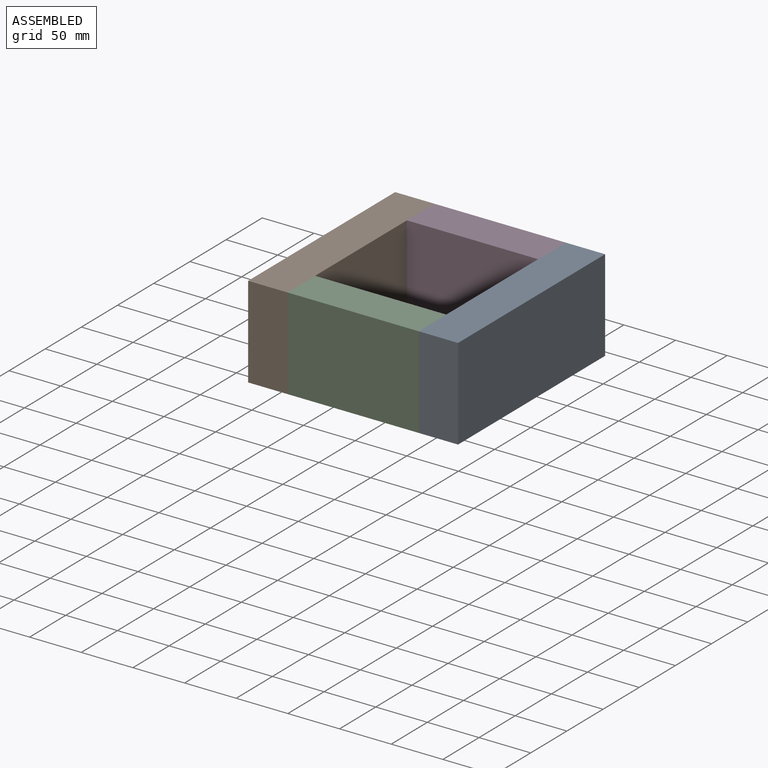
[diagram: assembled view]
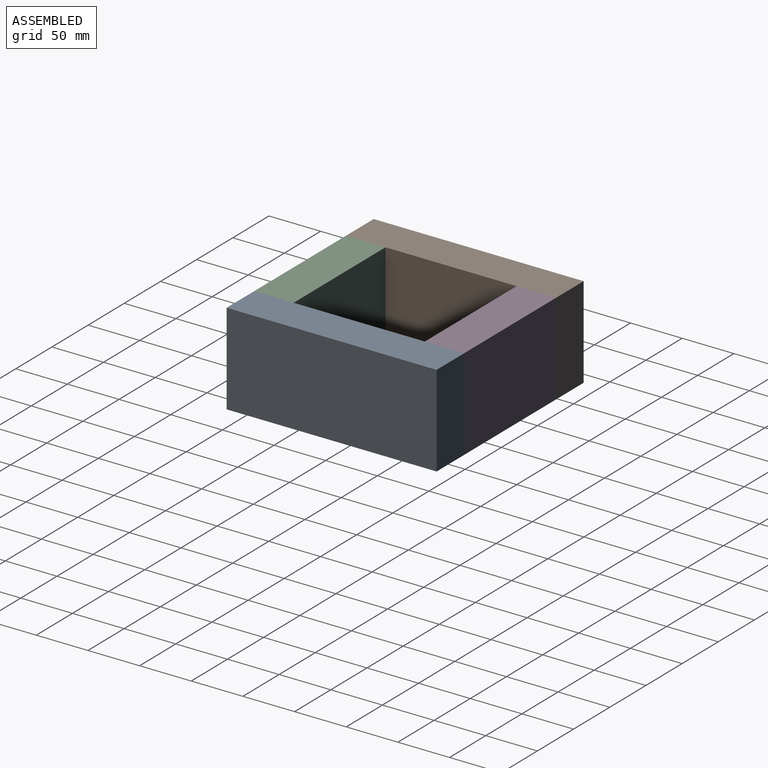
[diagram: assembled view, second angle]
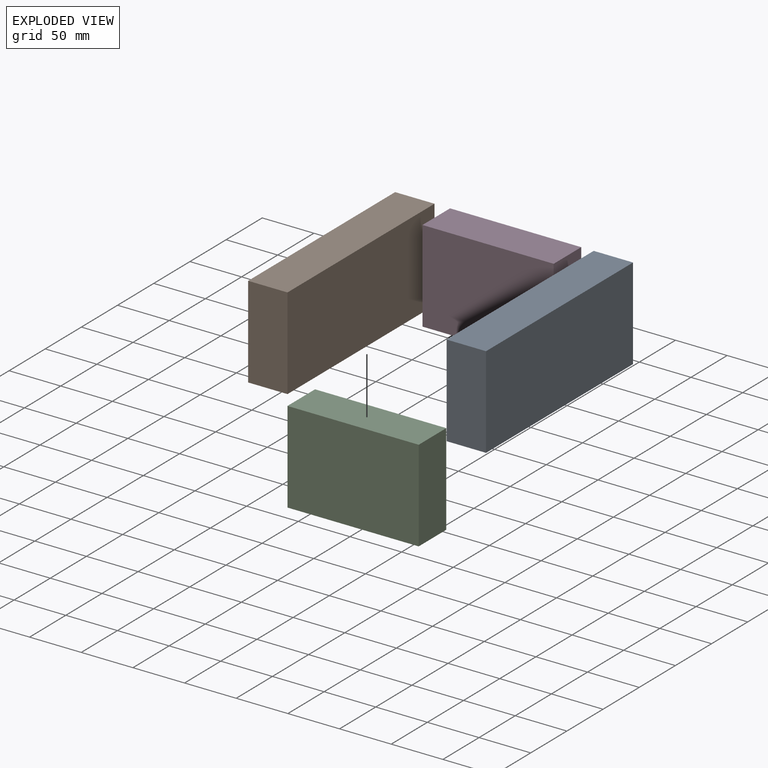
[diagram: exploded view]
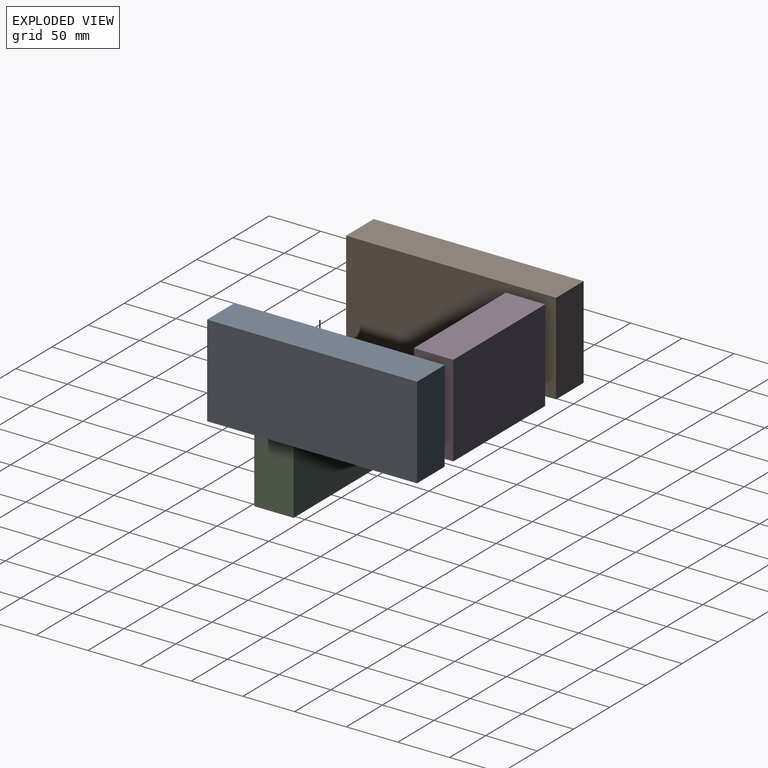
[diagram: exploded view, second angle]
ASSEMBLY  parts=4 mates=9
PART A: 6 faces, bbox 38.1x88.9x203.2 mm
  f0: plane 203.2x88.9mm, normal (-1,0,0), area 18064.5mm2, adj f1,f3,f4,f5
  f1: plane 203.2x38.1mm, normal (0,-1,0), area 7741.9mm2, adj f0,f2,f4,f5
  f2: plane 203.2x88.9mm, normal (1,0,0), area 18064.5mm2, adj f1,f3,f4,f5
  f3: plane 203.2x38.1mm, normal (0,1,0), area 7741.9mm2, adj f0,f2,f4,f5
  f4: plane 88.9x38.1mm, normal (0,0,1), area 3387.1mm2, adj f0,f1,f2,f3
  f5: plane 88.9x38.1mm, normal (0,0,-1), area 3387.1mm2, adj f0,f1,f2,f3
PART B: same geometry as A
PART C: 6 faces, bbox 127x38.1x88.9 mm
  f0: plane 127x38.1mm, normal (0,0,1), area 4838.7mm2, adj f1,f3,f4,f5
  f1: plane 127x88.9mm, normal (0,-1,0), area 11290.3mm2, adj f0,f2,f4,f5
  f2: plane 127x38.1mm, normal (0,0,-1), area 4838.7mm2, adj f1,f3,f4,f5
  f3: plane 127x88.9mm, normal (0,1,0), area 11290.3mm2, adj f0,f2,f4,f5
  f4: plane 88.9x38.1mm, normal (1,0,0), area 3387.1mm2, adj f0,f1,f2,f3
  f5: plane 88.9x38.1mm, normal (-1,0,0), area 3387.1mm2, adj f0,f1,f2,f3
PART D: same geometry as C
PLACE A rot(axis=(1,0,0),90deg) t=(7.78,-238.4,30.48)mm
PLACE B rot(axis=(-1,0,0),90deg) t=(-157.32,-441.6,109.44)mm
PLACE C t=(-216.32,-378.47,58.2)mm
PLACE D t=(-216.32,-213.37,58.2)mm
MATE planar D.f5 <-> B.f2  axis (-1,0,0) through (-216.32,-257.45,69.96)mm
MATE planar B.f4 <-> D.f3  axis (0,1,0) through (-235.37,-238.4,69.96)mm
MATE planar A.f0 <-> C.f4  axis (-1,0,0) through (-89.32,-340,69.96)mm
MATE planar C.f0 <-> B.f1  axis (0,0,1) through (-152.82,-422.55,114.41)mm
MATE planar A.f3 <-> C.f0  axis (0,0,1) through (-70.27,-340,114.41)mm
MATE planar B.f2 <-> C.f5  axis (1,0,0) through (-216.32,-340,69.96)mm
MATE planar D.f2 <-> B.f3  axis (0,0,-1) through (-152.82,-257.45,25.51)mm
MATE planar A.f4 <-> C.f1  axis (0,-1,0) through (-70.27,-441.6,69.96)mm
MATE planar C.f1 <-> B.f5  axis (0,-1,0) through (-152.82,-441.6,69.96)mm
